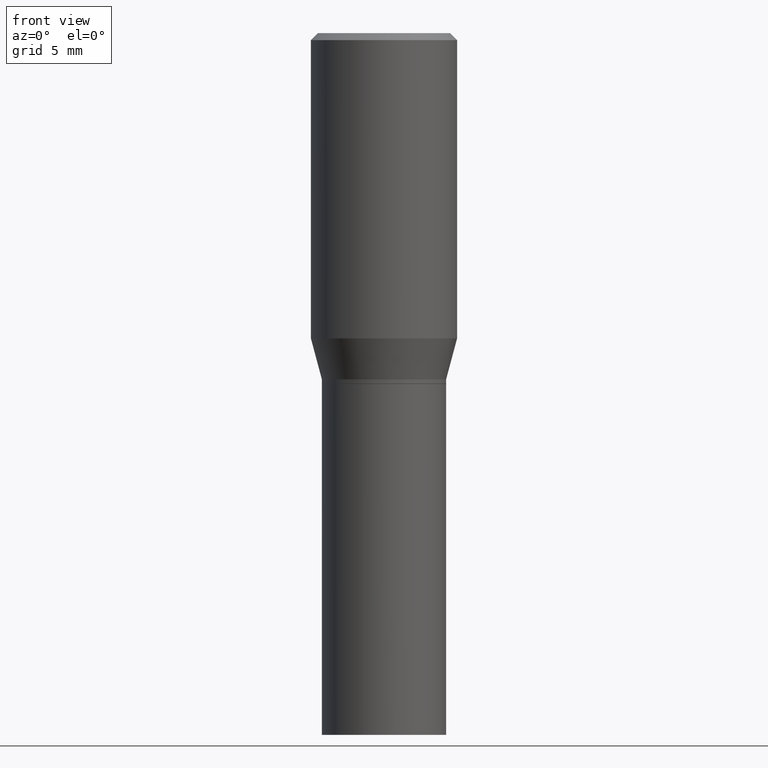
[diagram: clean part render]
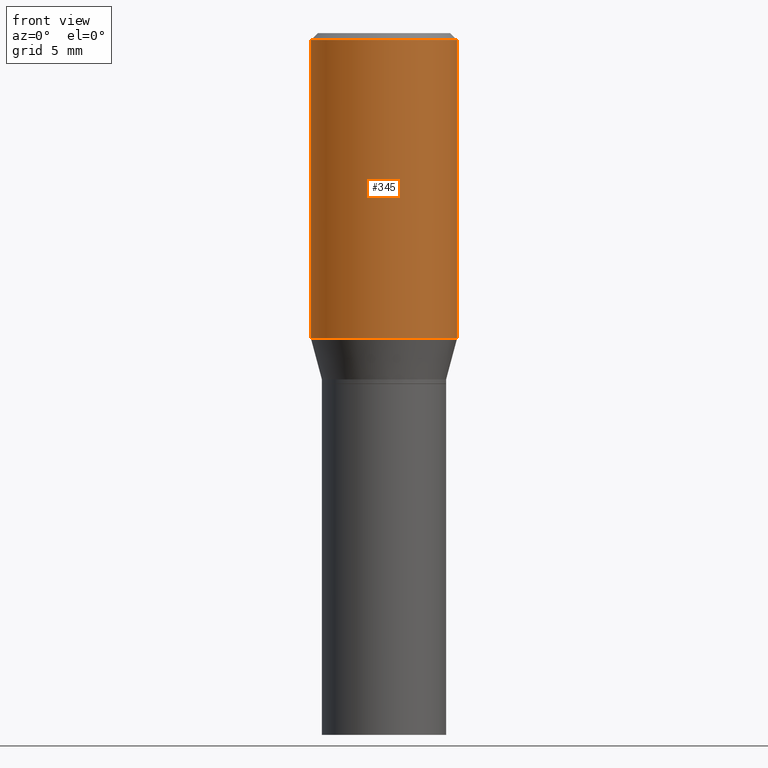
[diagram: same view with one face highlighted and labeled with its STEP entity id]
A machine part, front view. The second image highlights one B-rep face of the part: STEP entity #345.
In plain terms, the highlighted cylindrical surface (partial cylindrical patch) has radius 3.9688 mm, axis along (-0, 0, 1).
Its self-contained STEP definition (entity closure, byte-faithful):
#5 = VECTOR ( 'NONE', #264, 39.37007874015748143 ) ;
#16 = ORIENTED_EDGE ( 'NONE', *, *, #397, .T. ) ;
#22 = CARTESIAN_POINT ( 'NONE',  ( 0.1562500000000000000, -1.091087918388479174E-15, 7.619026212181150377E-30 ) ) ;
#32 = CARTESIAN_POINT ( 'NONE',  ( 0.1562500000000000000, -3.369221563289251454E-15, -0.6524834085625104141 ) ) ;
#35 = ORIENTED_EDGE ( 'NONE', *, *, #390, .T. ) ;
#63 = ORIENTED_EDGE ( 'NONE', *, *, #134, .F. ) ;
#64 = DIRECTION ( 'NONE',  ( -2.445468806185136597E-29, 3.491481338843145583E-15, 1.000000000000000000 ) ) ;
#73 = CARTESIAN_POINT ( 'NONE',  ( -0.1562500000000000000, 1.110223024625156540E-15, -7.685836078523291160E-30 ) ) ;
#92 = VECTOR ( 'NONE', #185, 39.37007874015748143 ) ;
#134 = EDGE_CURVE ( 'NONE', #384, #310, #258, .T. ) ;
#144 = CARTESIAN_POINT ( 'NONE',  ( 0.000000000000000000, 0.000000000000000000, 0.000000000000000000 ) ) ;
#152 = DIRECTION ( 'NONE',  ( -2.445468806185136597E-29, 3.491481338843145583E-15, 1.000000000000000000 ) ) ;
#167 = AXIS2_PLACEMENT_3D ( 'NONE', #423, #351, #286 ) ;
#168 = LINE ( 'NONE', #22, #5 ) ;
#185 = DIRECTION ( 'NONE',  ( -2.445468806185136877E-29, 3.491481338843145188E-15, 1.000000000000000000 ) ) ;
#192 = CYLINDRICAL_SURFACE ( 'NONE', #240, 0.1562500000000000000 ) ;
#198 = VERTEX_POINT ( 'NONE', #32 ) ;
#215 = EDGE_LOOP ( 'NONE', ( #459, #35, #16, #63 ) ) ;
#219 = DIRECTION ( 'NONE',  ( 1.000000000000000000, -6.982962677686266711E-15, 0.000000000000000000 ) ) ;
#230 = CARTESIAN_POINT ( 'NONE',  ( 0.1562500000000000000, -1.143460138471126253E-15, -0.01499999999999999944 ) ) ;
#240 = AXIS2_PLACEMENT_3D ( 'NONE', #144, #152, #295 ) ;
#247 = CARTESIAN_POINT ( 'NONE',  ( -0.1562500000000000000, -5.502990786655347834E-17, -0.01499999999999999944 ) ) ;
#258 = CIRCLE ( 'NONE', #335, 0.1562500000000000000 ) ;
#264 = DIRECTION ( 'NONE',  ( -2.445468806185136877E-29, 3.491481338843145188E-15, 1.000000000000000000 ) ) ;
#286 = DIRECTION ( 'NONE',  ( 1.000000000000000000, -6.982962677686265133E-15, 0.000000000000000000 ) ) ;
#295 = DIRECTION ( 'NONE',  ( 1.000000000000000000, -6.982962677686266711E-15, 4.876176775795936353E-29 ) ) ;
#310 = VERTEX_POINT ( 'NONE', #230 ) ;
#315 = EDGE_CURVE ( 'NONE', #415, #384, #358, .T. ) ;
#326 = FACE_OUTER_BOUND ( 'NONE', #215, .T. ) ;
#335 = AXIS2_PLACEMENT_3D ( 'NONE', #402, #64, #219 ) ;
#345 = ADVANCED_FACE ( 'NONE', ( #326 ), #192, .T. ) ;
#351 = DIRECTION ( 'NONE',  ( -2.445468806185136597E-29, 3.491481338843145583E-15, 1.000000000000000000 ) ) ;
#358 = LINE ( 'NONE', #73, #92 ) ;
#384 = VERTEX_POINT ( 'NONE', #247 ) ;
#390 = EDGE_CURVE ( 'NONE', #415, #198, #416, .T. ) ;
#397 = EDGE_CURVE ( 'NONE', #198, #310, #168, .T. ) ;
#402 = CARTESIAN_POINT ( 'NONE',  ( 3.668203209277705088E-31, -5.237222008264718399E-17, -0.01499999999999999944 ) ) ;
#415 = VERTEX_POINT ( 'NONE', #455 ) ;
#416 = CIRCLE ( 'NONE', #167, 0.1562500000000000000 ) ;
#423 = CARTESIAN_POINT ( 'NONE',  ( 1.595627822192971094E-29, -2.278133644900773069E-15, -0.6524834085625104141 ) ) ;
#455 = CARTESIAN_POINT ( 'NONE',  ( -0.1562500000000000000, -1.167910620275616332E-15, -0.6524834085625104141 ) ) ;
#459 = ORIENTED_EDGE ( 'NONE', *, *, #315, .F. ) ;